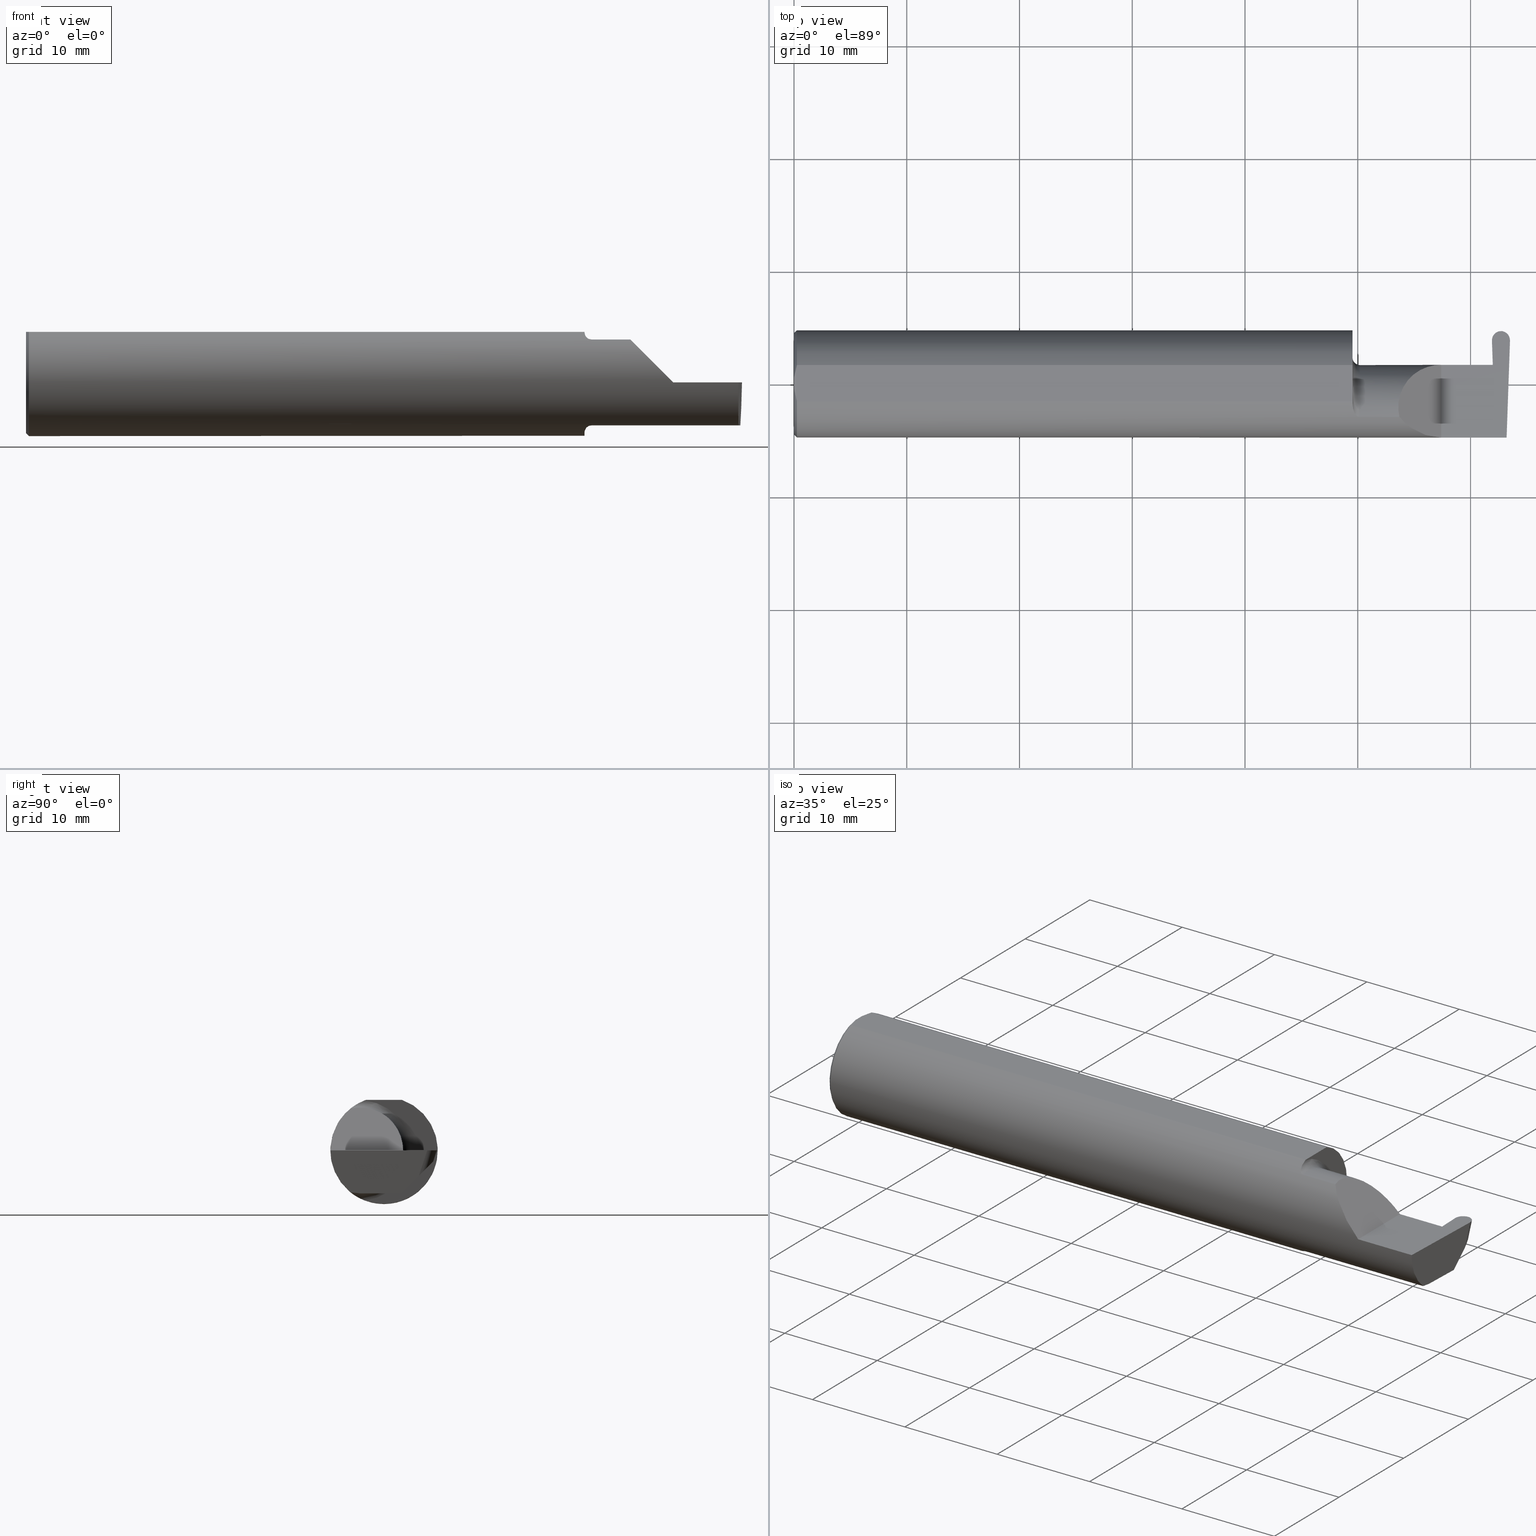
[diagram: canonical four-view strip — front | top / right | iso, engineering-drawing reading convention]
A machine part, canonical four-view strip (front | top / right | iso — engineering-drawing reading convention). The complete STEP part file that produces these views, byte-faithful:
ISO-10303-21;
HEADER;
FILE_DESCRIPTION (( 'STEP AP203' ),
    '1' );
FILE_NAME ('222158-GFR062-8.STEP',
    '2024-06-26T19:11:12',
    ( '' ),
    ( '' ),
    'SwSTEP 2.0',
    'SolidWorks 2024',
    '' );
FILE_SCHEMA (( 'CONFIG_CONTROL_DESIGN' ));
ENDSEC;

DATA;
#1 = ORIENTED_EDGE ( 'NONE', *, *, #479, .T. ) ;
#2 = EDGE_CURVE ( 'NONE', #534, #706, #395, .T. ) ;
#3 = CARTESIAN_POINT ( 'NONE',  ( 2.489143054109411057, -0.08335000000000006293, -0.1500000000000000500 ) ) ;
#4 = ORIENTED_EDGE ( 'NONE', *, *, #583, .T. ) ;
#5 = VECTOR ( 'NONE', #15, 39.37007874015748143 ) ;
#6 = AXIS2_PLACEMENT_3D ( 'NONE', #154, #57, #103 ) ;
#7 = LINE ( 'NONE', #334, #238 ) ;
#8 = ORIENTED_EDGE ( 'NONE', *, *, #583, .F. ) ;
#9 = APPROVAL_DATE_TIME ( #654, #417 ) ;
#10 = VERTEX_POINT ( 'NONE', #521 ) ;
#11 = DIRECTION ( 'NONE',  ( -1.000000000000000000, 0.000000000000000000, 1.224646799147353947E-16 ) ) ;
#12 = COORDINATED_UNIVERSAL_TIME_OFFSET ( 8, 0, .BEHIND. ) ;
#13 = EDGE_CURVE ( 'NONE', #59, #550, #329, .T. ) ;
#14 = VERTEX_POINT ( 'NONE', #621 ) ;
#15 = DIRECTION ( 'NONE',  ( -0.03701744261649735079, -0.7066221440565398915, -0.7066221440565479961 ) ) ;
#16 = CIRCLE ( 'NONE', #401, 0.1873499999999999888 ) ;
#17 = DIRECTION ( 'NONE',  ( -1.000000000000000000, -0.000000000000000000, -0.000000000000000000 ) ) ;
#18 = ORIENTED_EDGE ( 'NONE', *, *, #317, .F. ) ;
#19 = CARTESIAN_POINT ( 'NONE',  ( 0.000000000000000000, 0.000000000000000000, 0.000000000000000000 ) ) ;
#20 = ORIENTED_EDGE ( 'NONE', *, *, #520, .T. ) ;
#21 = CARTESIAN_POINT ( 'NONE',  ( 0.000000000000000000, 0.000000000000000000, 0.000000000000000000 ) ) ;
#22 = EDGE_CURVE ( 'NONE', #501, #406, #175, .T. ) ;
#23 = DATE_AND_TIME ( #359, #136 ) ;
#24 = CARTESIAN_POINT ( 'NONE',  ( 0.000000000000000000, -0.01880691362239451242, 0.1763499999999999235 ) ) ;
#25 = CARTESIAN_POINT ( 'NONE',  ( 2.449969426344554169, 0.1715521506114305039, -0.03875090093171906780 ) ) ;
#26 = EDGE_CURVE ( 'NONE', #706, #680, #342, .T. ) ;
#27 = APPROVAL_PERSON_ORGANIZATION ( #491, #271, #282 ) ;
#28 = ORIENTED_EDGE ( 'NONE', *, *, #264, .T. ) ;
#29 = CARTESIAN_POINT ( 'NONE',  ( 2.488744025780163405, -0.09477667630339421667, -0.1500000000000000222 ) ) ;
#30 = LINE ( 'NONE', #535, #275 ) ;
#31 = PERSON_AND_ORGANIZATION ( #367, #331 ) ;
#32 = CARTESIAN_POINT ( 'NONE',  ( 2.468430450000000054, 0.1722870660481372052, -0.03801598549501233881 ) ) ;
#33 = CARTESIAN_POINT ( 'NONE',  ( 2.437968007029192030, 0.1506577441815558360, -0.05964530736159395080 ) ) ;
#34 = CARTESIAN_POINT ( 'NONE',  ( 1.949999999999999956, -0.08335000000000000742, 0.000000000000000000 ) ) ;
#35 = CARTESIAN_POINT ( 'NONE',  ( 2.466868444985754305, 0.1637525499561582054, -0.06431573796887415928 ) ) ;
#36 = EDGE_CURVE ( 'NONE', #644, #641, #548, .T. ) ;
#37 = LINE ( 'NONE', #413, #609 ) ;
#38 = CARTESIAN_POINT ( 'NONE',  ( 2.449270737010766030, 0.1846499999999998975, 6.213428064161130250E-18 ) ) ;
#39 = CLOSED_SHELL ( 'NONE', ( #602, #346, #283, #605, #337, #121, #551, #431, #639, #273, #186, #196, #47, #690, #212, #362, #649, #132, #239 ) ) ;
#40 = CARTESIAN_POINT ( 'NONE',  ( 2.468430450000000054, 0.1722870660481372052, -0.03801598549501233881 ) ) ;
#41 = LINE ( 'NONE', #593, #493 ) ;
#42 = ORIENTED_EDGE ( 'NONE', *, *, #13, .F. ) ;
#43 = DIRECTION ( 'NONE',  ( 1.000000000000000000, 0.000000000000000000, -0.000000000000000000 ) ) ;
#44 = CARTESIAN_POINT ( 'NONE',  ( 0.000000000000000000, 0.06325108694718235836, 0.1763499999999999235 ) ) ;
#45 = ORIENTED_EDGE ( 'NONE', *, *, #699, .T. ) ;
#46 = PLANE ( 'NONE',  #502 ) ;
#47 = ADVANCED_FACE ( 'NONE', ( #455 ), #350, .F. ) ;
#48 = CARTESIAN_POINT ( 'NONE',  ( 1.951829077486400221, -0.08839624499054647699, 0.1652742498708037466 ) ) ;
#49 = DIRECTION ( 'NONE',  ( 0.7071067811865426878, 0.000000000000000000, -0.7071067811865523467 ) ) ;
#50 = EDGE_LOOP ( 'NONE', ( #45, #20, #446, #477, #230, #374 ) ) ;
#51 = CARTESIAN_POINT ( 'NONE',  ( 2.439859874782298377, 0.06664999999999998703, 0.000000000000000000 ) ) ;
#52 = CARTESIAN_POINT ( 'NONE',  ( 1.974999999999999867, -0.1172600179964006784, 0.1461167706989303650 ) ) ;
#53 = PLANE ( 'NONE',  #287 ) ;
#54 = VECTOR ( 'NONE', #686, 39.37007874015748143 ) ;
#55 = VERTEX_POINT ( 'NONE', #128 ) ;
#56 = SECURITY_CLASSIFICATION ( '', '', #233 ) ;
#57 = DIRECTION ( 'NONE',  ( -1.000000000000000000, -0.000000000000000000, -0.000000000000000000 ) ) ;
#58 = FACE_OUTER_BOUND ( 'NONE', #153, .T. ) ;
#59 = VERTEX_POINT ( 'NONE', #78 ) ;
#60 = ORIENTED_EDGE ( 'NONE', *, *, #391, .T. ) ;
#61 = DATE_TIME_ROLE ( 'creation_date' ) ;
#62 = ORIENTED_EDGE ( 'NONE', *, *, #391, .F. ) ;
#63 = AXIS2_PLACEMENT_3D ( 'NONE', #678, #142, #642 ) ;
#64 =( LENGTH_UNIT ( ) NAMED_UNIT ( * ) SI_UNIT ( $, .METRE. ) );
#65 = ORIENTED_EDGE ( 'NONE', *, *, #2, .T. ) ;
#66 = DIRECTION ( 'NONE',  ( -0.01806954526206907760, 0.01744955702544846027, 0.9996844524616944616 ) ) ;
#67 = ORIENTED_EDGE ( 'NONE', *, *, #635, .F. ) ;
#68 = DIRECTION ( 'NONE',  ( -1.000000000000000000, -0.000000000000000000, -0.000000000000000000 ) ) ;
#69 = PERSON_AND_ORGANIZATION ( #367, #331 ) ;
#70 = EDGE_LOOP ( 'NONE', ( #204, #267, #380, #92, #669, #473, #449, #652, #194 ) ) ;
#71 = CARTESIAN_POINT ( 'NONE',  ( 2.500000000000000000, -0.2500000000000000555, 0.000000000000000000 ) ) ;
#72 = AXIS2_PLACEMENT_3D ( 'NONE', #321, #340, #667 ) ;
#73 = ORIENTED_EDGE ( 'NONE', *, *, #572, .T. ) ;
#74 = EDGE_CURVE ( 'NONE', #644, #685, #574, .T. ) ;
#75 = CARTESIAN_POINT ( 'NONE',  ( 2.439475726232483321, 0.1218770478189729611, -0.08842600372417716570 ) ) ;
#76 = CARTESIAN_POINT ( 'NONE',  ( -0.001039370078740541395, 0.06030305154315079158, -0.1500000000000000500 ) ) ;
#77 = CARTESIAN_POINT ( 'NONE',  ( 2.499944547461123268, 0.1507395558974708727, 0.0004036622306032532342 ) ) ;
#78 = CARTESIAN_POINT ( 'NONE',  ( 2.499932917084233264, 0.1506083980881225692, 0.000000000000000000 ) ) ;
#79 = PLANE ( 'NONE',  #687 ) ;
#80 =( BOUNDED_CURVE ( )  B_SPLINE_CURVE ( 3, ( #396, #615, #507, #595 ),
 .UNSPECIFIED., .F., .F. ) 
 B_SPLINE_CURVE_WITH_KNOTS ( ( 4, 4 ),
 ( 6.055147272130144920, 7.853981633974482790 ),
 .UNSPECIFIED. ) 
 CURVE ( )  GEOMETRIC_REPRESENTATION_ITEM ( )  RATIONAL_B_SPLINE_CURVE ( ( 1.000000000000000000, 0.7480442670255273985, 0.7480442670255273985, 1.000000000000000000 ) ) 
 REPRESENTATION_ITEM ( '' )  );
#81 = VECTOR ( 'NONE', #255, 39.37007874015748143 ) ;
#82 = APPROVAL_PERSON_ORGANIZATION ( #182, #487, #462 ) ;
#83 = CC_DESIGN_PERSON_AND_ORGANIZATION_ASSIGNMENT ( #172, #327, ( #508 ) ) ;
#84 = CARTESIAN_POINT ( 'NONE',  ( 2.500625205974851273, 0.1704329581048291409, -1.247844596711687595E-17 ) ) ;
#85 = CARTESIAN_POINT ( 'NONE',  ( 2.202189699843948301, -0.1873500000000000443, 0.05781030015605120170 ) ) ;
#86 = DIRECTION ( 'NONE',  ( 0.000000000000000000, 0.9510565162951533091, -0.3090169943749480619 ) ) ;
#87 = EDGE_CURVE ( 'NONE', #550, #587, #480, .T. ) ;
#88 = ORIENTED_EDGE ( 'NONE', *, *, #668, .F. ) ;
#89 = CARTESIAN_POINT ( 'NONE',  ( 1.951843912362378308, -0.08846956905169088559, -0.1652353808078972919 ) ) ;
#90 = DIRECTION ( 'NONE',  ( -1.000000000000000000, -3.506966766154694863E-17, -0.000000000000000000 ) ) ;
#91 = FACE_OUTER_BOUND ( 'NONE', #594, .T. ) ;
#92 = ORIENTED_EDGE ( 'NONE', *, *, #143, .F. ) ;
#93 = CARTESIAN_POINT ( 'NONE',  ( 1.949999999999999956, 0.1873499999999999055, 0.000000000000000000 ) ) ;
#94 = LINE ( 'NONE', #259, #469 ) ;
#95 = EDGE_CURVE ( 'NONE', #587, #501, #448, .T. ) ;
#96 = VERTEX_POINT ( 'NONE', #536 ) ;
#97 = CARTESIAN_POINT ( 'NONE',  ( 2.488131149766799943, -0.1873499999999999888, 0.000000000000000000 ) ) ;
#98 = CARTESIAN_POINT ( 'NONE',  ( 1.949999999999999956, 0.06325108694718235836, 0.1763499999999999235 ) ) ;
#99 = CARTESIAN_POINT ( 'NONE',  ( 2.468392368909974710, 0.1518387226096841736, 0.0009534130333776854498 ) ) ;
#100 = CARTESIAN_POINT ( 'NONE',  ( 0.000000000000000000, -0.01880691362239451242, 0.1763499999999999235 ) ) ;
#101 = ORIENTED_EDGE ( 'NONE', *, *, #657, .T. ) ;
#102 = B_SPLINE_CURVE_WITH_KNOTS ( 'NONE', 3,
 ( #308, #151, #202, #48, #683, #344, #567, #254, #704, #397, #171, #454 ),
 .UNSPECIFIED., .F., .F.,
 ( 4, 2, 2, 2, 2, 4 ),
 ( 4.423516731080767705E-05, 0.0004615475116586702166, 0.0008788598560065327562, 0.001296172200354395350, 0.001504828372528326267, 0.001713484544702257402 ),
 .UNSPECIFIED. ) ;
#103 = DIRECTION ( 'NONE',  ( 0.000000000000000000, 0.000000000000000000, -1.000000000000000000 ) ) ;
#104 = DIRECTION ( 'NONE',  ( -0.02739170151059995562, 0.3089010440752013587, 0.9506996579664918068 ) ) ;
#105 = VECTOR ( 'NONE', #471, 39.37007874015748854 ) ;
#106 = VECTOR ( 'NONE', #174, 39.37007874015748143 ) ;
#107 = ORIENTED_EDGE ( 'NONE', *, *, #292, .T. ) ;
#108 = EDGE_CURVE ( 'NONE', #534, #441, #688, .T. ) ;
#109 = ORIENTED_EDGE ( 'NONE', *, *, #219, .T. ) ;
#110 = DATE_AND_TIME ( #118, #265 ) ;
#111 = VERTEX_POINT ( 'NONE', #197 ) ;
#112 = FACE_OUTER_BOUND ( 'NONE', #50, .T. ) ;
#113 = VERTEX_POINT ( 'NONE', #52 ) ;
#114 = EDGE_CURVE ( 'NONE', #650, #113, #102, .T. ) ;
#115 = VECTOR ( 'NONE', #404, 39.37007874015748143 ) ;
#116 = PLANE ( 'NONE',  #575 ) ;
#117 = ORIENTED_EDGE ( 'NONE', *, *, #596, .T. ) ;
#118 = CALENDAR_DATE ( 2024, 26, 6 ) ;
#119 = VERTEX_POINT ( 'NONE', #573 ) ;
#120 = CARTESIAN_POINT ( 'NONE',  ( 2.499980768683121024, 0.1519786885938757826, 0.000000000000000000 ) ) ;
#121 = ADVANCED_FACE ( 'NONE', ( #181 ), #296, .T. ) ;
#122 = EDGE_LOOP ( 'NONE', ( #215, #328, #492, #141, #364, #383, #278, #659, #560, #368, #335, #354, #600 ) ) ;
#123 = DIRECTION ( 'NONE',  ( 0.02739170151059983765, 0.3089010440752013031, 0.9506996579664920288 ) ) ;
#124 = DIRECTION ( 'NONE',  ( -0.03489949670249307273, -0.9993908270190959842, 0.000000000000000000 ) ) ;
#125 = LINE ( 'NONE', #138, #115 ) ;
#126 = DESIGN_CONTEXT ( 'detailed design', #434, 'design' ) ;
#127 = DATE_TIME_ROLE ( 'classification_date' ) ;
#128 = CARTESIAN_POINT ( 'NONE',  ( 1.949999999999999956, -0.06851976604679065053, -0.1743704796142198643 ) ) ;
#129 = CARTESIAN_POINT ( 'NONE',  ( 2.488131149766799943, -0.1873499999999999888, 0.000000000000000000 ) ) ;
#130 = CARTESIAN_POINT ( 'NONE',  ( 2.499932917084233264, 0.1506083980881225692, 0.000000000000000000 ) ) ;
#131 = DIRECTION ( 'NONE',  ( 0.000000000000000000, 0.000000000000000000, -1.000000000000000000 ) ) ;
#132 = ADVANCED_FACE ( 'NONE', ( #478 ), #519, .T. ) ;
#133 = DIRECTION ( 'NONE',  ( 0.9992386149554828290, 0.03489418134010615485, 0.01745240643728358798 ) ) ;
#134 = VECTOR ( 'NONE', #124, 39.37007874015748854 ) ;
#135 = VECTOR ( 'NONE', #49, 39.37007874015748143 ) ;
#136 = LOCAL_TIME ( 12, 11, 12.00000000000000000, #684 ) ;
#137 = VERTEX_POINT ( 'NONE', #299 ) ;
#138 = CARTESIAN_POINT ( 'NONE',  ( 2.733184360054361939, -0.08335000000000006293, -0.1500000000000000500 ) ) ;
#139 = CARTESIAN_POINT ( 'NONE',  ( 2.430678306684182832, 0.06658908270190941336, -0.003489949670254420978 ) ) ;
#140 = DIRECTION ( 'NONE',  ( 3.506966766154694863E-17, -1.000000000000000000, 0.000000000000000000 ) ) ;
#141 = ORIENTED_EDGE ( 'NONE', *, *, #451, .T. ) ;
#142 = DIRECTION ( 'NONE',  ( 0.000000000000000000, 0.000000000000000000, 1.000000000000000000 ) ) ;
#143 = EDGE_CURVE ( 'NONE', #14, #332, #244, .T. ) ;
#144 = CARTESIAN_POINT ( 'NONE',  ( 1.949999999999999956, -0.06851976604679065053, 0.1743704796142198643 ) ) ;
#145 = ORIENTED_EDGE ( 'NONE', *, *, #596, .F. ) ;
#146 = DIRECTION ( 'NONE',  ( 1.000000000000000000, 0.000000000000000000, 0.000000000000000000 ) ) ;
#147 = VECTOR ( 'NONE', #17, 39.37007874015748143 ) ;
#148 = CARTESIAN_POINT ( 'NONE',  ( 2.468430450000000054, 0.1813675557112593428, -0.01010232474915218753 ) ) ;
#149 = EDGE_LOOP ( 'NONE', ( #486, #389, #505, #606 ) ) ;
#150 = CARTESIAN_POINT ( 'NONE',  ( 2.468139380300150343, 0.1846500000000000363, 0.000000000000000000 ) ) ;
#151 = CARTESIAN_POINT ( 'NONE',  ( 1.949999999999999956, -0.07367581953296703512, 0.1723443821957854338 ) ) ;
#152 = CARTESIAN_POINT ( 'NONE',  ( 0.000000000000000000, 0.000000000000000000, -0.1773500000000005072 ) ) ;
#153 = EDGE_LOOP ( 'NONE', ( #570, #73, #345, #482 ) ) ;
#154 = CARTESIAN_POINT ( 'NONE',  ( 0.000000000000000000, 0.000000000000000000, 0.000000000000000000 ) ) ;
#155 = PRODUCT_RELATED_PRODUCT_CATEGORY ( 'detail', '', ( #545 ) ) ;
#156 = LINE ( 'NONE', #537, #608 ) ;
#157 = ORIENTED_EDGE ( 'NONE', *, *, #617, .T. ) ;
#158 = EDGE_CURVE ( 'NONE', #540, #240, #225, .T. ) ;
#159 = AXIS2_PLACEMENT_3D ( 'NONE', #592, #146, #190 ) ;
#160 = ORIENTED_EDGE ( 'NONE', *, *, #371, .F. ) ;
#161 = CARTESIAN_POINT ( 'NONE',  ( 0.000000000000000000, 0.000000000000000000, 0.000000000000000000 ) ) ;
#162 = ORIENTED_EDGE ( 'NONE', *, *, #490, .F. ) ;
#163 = DATE_AND_TIME ( #549, #388 ) ;
#164 = EDGE_CURVE ( 'NONE', #332, #240, #30, .T. ) ;
#165 = ORIENTED_EDGE ( 'NONE', *, *, #520, .F. ) ;
#166 = DIRECTION ( 'NONE',  ( -0.03489949670249308661, -0.9993908270190960952, 0.000000000000000000 ) ) ;
#167 =( CONVERSION_BASED_UNIT ( 'INCH', #435 ) LENGTH_UNIT ( ) NAMED_UNIT ( #589 ) );
#168 = ORIENTED_EDGE ( 'NONE', *, *, #95, .F. ) ;
#169 = CARTESIAN_POINT ( 'NONE',  ( 0.000000000000000000, 0.000000000000000000, 0.000000000000000000 ) ) ;
#170 = APPROVAL_PERSON_ORGANIZATION ( #69, #417, #274 ) ;
#171 = CARTESIAN_POINT ( 'NONE',  ( 1.972161949849307927, -0.1172600179964061184, 0.1461167706989260073 ) ) ;
#172 = PERSON_AND_ORGANIZATION ( #367, #331 ) ;
#173 = ORIENTED_EDGE ( 'NONE', *, *, #418, .F. ) ;
#174 = DIRECTION ( 'NONE',  ( -0.0003154085283454578109, 0.9999999502587288980, 0.000000000000000000 ) ) ;
#175 =( BOUNDED_CURVE ( )  B_SPLINE_CURVE ( 3, ( #32, #290, #183, #618 ),
 .UNSPECIFIED., .F., .T. ) 
 B_SPLINE_CURVE_WITH_KNOTS ( ( 4, 4 ),
 ( 3.153164711223715777, 4.726229945297541590 ),
 .UNSPECIFIED. ) 
 CURVE ( )  GEOMETRIC_REPRESENTATION_ITEM ( )  RATIONAL_B_SPLINE_CURVE ( ( 1.000000000000000000, 0.8042027643195487352, 0.8042027643195487352, 1.000000000000000000 ) ) 
 REPRESENTATION_ITEM ( '' )  );
#176 = VERTEX_POINT ( 'NONE', #97 ) ;
#177 = LINE ( 'NONE', #120, #552 ) ;
#178 = DIRECTION ( 'NONE',  ( 1.000000000000000000, -0.000000000000000000, -0.000000000000000000 ) ) ;
#179 = VECTOR ( 'NONE', #192, 39.37007874015748143 ) ;
#180 = CIRCLE ( 'NONE', #250, 0.1873499999999999888 ) ;
#181 = FACE_OUTER_BOUND ( 'NONE', #304, .T. ) ;
#182 = PERSON_AND_ORGANIZATION ( #367, #331 ) ;
#183 = CARTESIAN_POINT ( 'NONE',  ( 2.498892892970808521, 0.1506577441815563079, -0.05964530736159349283 ) ) ;
#184 = CARTESIAN_POINT ( 'NONE',  ( 2.487084196965268390, -0.1623470442677540926, -0.1099340280425339100 ) ) ;
#185 = ORIENTED_EDGE ( 'NONE', *, *, #475, .T. ) ;
#186 = ADVANCED_FACE ( 'NONE', ( #305 ), #461, .T. ) ;
#187 = CARTESIAN_POINT ( 'NONE',  ( 2.487121452143546296, -0.1873500000000000165, -0.05781030015605123640 ) ) ;
#188 = DIRECTION ( 'NONE',  ( 0.000000000000000000, -1.000000000000000000, 0.000000000000000000 ) ) ;
#189 = CARTESIAN_POINT ( 'NONE',  ( 0.009999999999999346217, -0.06325108694718235836, 0.1763499999999999235 ) ) ;
#190 = DIRECTION ( 'NONE',  ( 0.000000000000000000, 0.000000000000000000, -1.000000000000000000 ) ) ;
#191 = AXIS2_PLACEMENT_3D ( 'NONE', #19, #231, #426 ) ;
#192 = DIRECTION ( 'NONE',  ( -0.01299916717458447432, 0.7070470357949164564, 0.7070470357949245610 ) ) ;
#193 = CARTESIAN_POINT ( 'NONE',  ( 2.489143054109411057, -0.08335000000000006293, -0.1500000000000000500 ) ) ;
#194 = ORIENTED_EDGE ( 'NONE', *, *, #13, .T. ) ;
#195 = DIRECTION ( 'NONE',  ( -1.000000000000000000, -3.506966766154694863E-17, -0.000000000000000000 ) ) ;
#196 = ADVANCED_FACE ( 'NONE', ( #200 ), #46, .F. ) ;
#197 = CARTESIAN_POINT ( 'NONE',  ( 2.439954497345508511, 0.06655862405284596051, -0.005234924505382013322 ) ) ;
#198 = DIRECTION ( 'NONE',  ( -0.7071067811865441310, 0.000000000000000000, -0.7071067811865510144 ) ) ;
#199 = ORIENTED_EDGE ( 'NONE', *, *, #564, .T. ) ;
#200 = FACE_OUTER_BOUND ( 'NONE', #576, .T. ) ;
#201 = B_SPLINE_CURVE_WITH_KNOTS ( 'NONE', 3,
 ( #696, #203, #419, #314 ),
 .UNSPECIFIED., .F., .F.,
 ( 4, 4 ),
 ( 0.01188664626022267051, 0.01304646959483758001 ),
 .UNSPECIFIED. ) ;
#202 = CARTESIAN_POINT ( 'NONE',  ( 1.950353553376444671, -0.07868116735658675642, 0.1701139256562800295 ) ) ;
#203 = CARTESIAN_POINT ( 'NONE',  ( 0.001616639753276218755, 0.03405189565400963680, 0.1763499999999999235 ) ) ;
#204 = ORIENTED_EDGE ( 'NONE', *, *, #496, .F. ) ;
#205 = CIRCLE ( 'NONE', #468, 0.1500000000000000500 ) ;
#206 = VECTOR ( 'NONE', #123, 39.37007874015747433 ) ;
#207 = LINE ( 'NONE', #539, #147 ) ;
#208 =( BOUNDED_CURVE ( )  B_SPLINE_CURVE ( 3, ( #343, #522, #29, #193 ),
 .UNSPECIFIED., .F., .F. ) 
 B_SPLINE_CURVE_WITH_KNOTS ( ( 4, 4 ),
 ( 0.8789888184544045746, 1.107026853503847663 ),
 .UNSPECIFIED. ) 
 CURVE ( )  GEOMETRIC_REPRESENTATION_ITEM ( )  RATIONAL_B_SPLINE_CURVE ( ( 1.000000000000000000, 0.9956712472009929815, 0.9956712472009929815, 1.000000000000000000 ) ) 
 REPRESENTATION_ITEM ( '' )  );
#209 = ORIENTED_EDGE ( 'NONE', *, *, #506, .T. ) ;
#210 = CARTESIAN_POINT ( 'NONE',  ( 2.430647848035137226, 0.06655862405286416816, -0.005234924505381627347 ) ) ;
#211 = LINE ( 'NONE', #251, #531 ) ;
#212 = ADVANCED_FACE ( 'NONE', ( #523 ), #311, .F. ) ;
#213 = ORIENTED_EDGE ( 'NONE', *, *, #412, .T. ) ;
#214 = LINE ( 'NONE', #428, #518 ) ;
#215 = ORIENTED_EDGE ( 'NONE', *, *, #564, .F. ) ;
#216 = CC_DESIGN_PERSON_AND_ORGANIZATION_ASSIGNMENT ( #222, #439, ( #357 ) ) ;
#217 = AXIS2_PLACEMENT_3D ( 'NONE', #319, #700, #140 ) ;
#218 = EDGE_LOOP ( 'NONE', ( #315, #117, #425 ) ) ;
#219 = EDGE_CURVE ( 'NONE', #113, #137, #205, .T. ) ;
#220 = CARTESIAN_POINT ( 'NONE',  ( 2.494159529209134529, 0.06030305154315079852, -0.1500000000000000500 ) ) ;
#221 = ORIENTED_EDGE ( 'NONE', *, *, #451, .F. ) ;
#222 = PERSON_AND_ORGANIZATION ( #367, #331 ) ;
#223 = EDGE_LOOP ( 'NONE', ( #547, #614, #168, #376, #42 ) ) ;
#224 = DIRECTION ( 'NONE',  ( 1.000000000000000000, 3.506966766154694863E-17, 0.000000000000000000 ) ) ;
#225 =( BOUNDED_CURVE ( )  B_SPLINE_CURVE ( 3, ( #150, #38, #527, #694 ),
 .UNSPECIFIED., .F., .F. ) 
 B_SPLINE_CURVE_WITH_KNOTS ( ( 4, 4 ),
 ( 3.057488531086369754, 4.656081685705084183 ),
 .UNSPECIFIED. ) 
 CURVE ( )  GEOMETRIC_REPRESENTATION_ITEM ( )  RATIONAL_B_SPLINE_CURVE ( ( 1.000000000000000000, 0.7981407609938104830, 0.7981407609938104830, 1.000000000000000000 ) ) 
 REPRESENTATION_ITEM ( '' )  );
#226 = EDGE_LOOP ( 'NONE', ( #185, #173, #157, #28 ) ) ;
#227 = DIRECTION ( 'NONE',  ( -0.03489949670249307273, -0.9993908270190959842, 0.000000000000000000 ) ) ;
#228 = CIRCLE ( 'NONE', #6, 0.1773500000000005072 ) ;
#229 = COORDINATED_UNIVERSAL_TIME_OFFSET ( 8, 0, .BEHIND. ) ;
#230 = ORIENTED_EDGE ( 'NONE', *, *, #2, .F. ) ;
#231 = DIRECTION ( 'NONE',  ( -1.000000000000000000, -0.000000000000000000, -0.000000000000000000 ) ) ;
#232 = EDGE_CURVE ( 'NONE', #685, #119, #237, .T. ) ;
#233 = SECURITY_CLASSIFICATION_LEVEL ( 'unclassified' ) ;
#234 = DIRECTION ( 'NONE',  ( 0.000000000000000000, 0.000000000000000000, -1.000000000000000000 ) ) ;
#235 = DIRECTION ( 'NONE',  ( 0.000000000000000000, -0.9510565162951534202, 0.3090169943749482284 ) ) ;
#236 = CARTESIAN_POINT ( 'NONE',  ( 1.972174967710398796, -0.1172600179964006228, -0.1461167706989304205 ) ) ;
#237 = CIRCLE ( 'NONE', #159, 0.1873499999999999888 ) ;
#238 = VECTOR ( 'NONE', #546, 39.37007874015748143 ) ;
#239 = ADVANCED_FACE ( 'NONE', ( #698 ), #358, .T. ) ;
#240 = VERTEX_POINT ( 'NONE', #579 ) ;
#241 = CARTESIAN_POINT ( 'NONE',  ( 2.468430450000000054, 0.1722870660481372052, -0.03801598549501233881 ) ) ;
#242 = DIRECTION ( 'NONE',  ( -0.03489949670249346131, 0.9993908270190959842, -0.000000000000000000 ) ) ;
#243 = CALENDAR_DATE ( 2024, 26, 6 ) ;
#244 = LINE ( 'NONE', #474, #620 ) ;
#245 =( BOUNDED_CURVE ( )  B_SPLINE_CURVE ( 3, ( #75, #33, #25, #241 ),
 .UNSPECIFIED., .F., .F. ) 
 B_SPLINE_CURVE_WITH_KNOTS ( ( 4, 4 ),
 ( 1.556955361882043087, 3.130020595955853135 ),
 .UNSPECIFIED. ) 
 CURVE ( )  GEOMETRIC_REPRESENTATION_ITEM ( )  RATIONAL_B_SPLINE_CURVE ( ( 1.000000000000000000, 0.8042027643195523989, 0.8042027643195523989, 1.000000000000000000 ) ) 
 REPRESENTATION_ITEM ( '' )  );
#246 = LINE ( 'NONE', #513, #54 ) ;
#247 = EDGE_CURVE ( 'NONE', #392, #14, #348, .T. ) ;
#248 = FACE_OUTER_BOUND ( 'NONE', #436, .T. ) ;
#249 = AXIS2_PLACEMENT_3D ( 'NONE', #99, #408, #629 ) ;
#250 = AXIS2_PLACEMENT_3D ( 'NONE', #269, #590, #533 ) ;
#251 = CARTESIAN_POINT ( 'NONE',  ( 2.439859874782298377, 0.06664999999999998703, -9.645561665750239894E-21 ) ) ;
#252 = ORIENTED_EDGE ( 'NONE', *, *, #26, .F. ) ;
#253 = CARTESIAN_POINT ( 'NONE',  ( 1.974999999999999867, -0.08335000000000000742, 0.000000000000000000 ) ) ;
#254 = CARTESIAN_POINT ( 'NONE',  ( 1.963163223656403389, -0.1119926267047277602, 0.1502091925606062750 ) ) ;
#255 = DIRECTION ( 'NONE',  ( -1.000000000000000000, -0.000000000000000000, -0.000000000000000000 ) ) ;
#256 = ORIENTED_EDGE ( 'NONE', *, *, #232, .F. ) ;
#257 = CARTESIAN_POINT ( 'NONE',  ( 2.733184360054361939, -0.08335000000000006293, -0.1500000000000000500 ) ) ;
#258 = CARTESIAN_POINT ( 'NONE',  ( 2.468430450000000054, 0.1783435689548762415, -0.01940919900590836605 ) ) ;
#259 = CARTESIAN_POINT ( 'NONE',  ( 0.000000000000000000, 0.1873499999999998500, 0.1763499999999999235 ) ) ;
#260 = EDGE_LOOP ( 'NONE', ( #4, #509, #213 ) ) ;
#261 = DIRECTION ( 'NONE',  ( -1.224646799147353947E-16, 0.000000000000000000, -1.000000000000000000 ) ) ;
#262 = VECTOR ( 'NONE', #224, 39.37007874015748143 ) ;
#263 = AXIS2_PLACEMENT_3D ( 'NONE', #21, #291, #234 ) ;
#264 = EDGE_CURVE ( 'NONE', #650, #55, #562, .T. ) ;
#265 = LOCAL_TIME ( 12, 11, 12.00000000000000000, #12 ) ;
#266 = DIRECTION ( 'NONE',  ( 1.000000000000000000, 0.000000000000000000, 0.000000000000000000 ) ) ;
#267 = ORIENTED_EDGE ( 'NONE', *, *, #158, .T. ) ;
#268 = CARTESIAN_POINT ( 'NONE',  ( 0.000000000000000000, 0.000000000000000000, -0.1773500000000005072 ) ) ;
#269 = CARTESIAN_POINT ( 'NONE',  ( 1.949999999999999956, 0.000000000000000000, 0.000000000000000000 ) ) ;
#270 = ORIENTED_EDGE ( 'NONE', *, *, #247, .F. ) ;
#271 = APPROVAL ( #382, 'UNSPECIFIED' ) ;
#272 = ORIENTED_EDGE ( 'NONE', *, *, #572, .F. ) ;
#273 = ADVANCED_FACE ( 'NONE', ( #248 ), #470, .T. ) ;
#274 = APPROVAL_ROLE ( '' ) ;
#275 = VECTOR ( 'NONE', #242, 39.37007874015748143 ) ;
#276 = ORIENTED_EDGE ( 'NONE', *, *, #635, .T. ) ;
#277 = APPROVAL_STATUS ( 'not_yet_approved' ) ;
#278 = ORIENTED_EDGE ( 'NONE', *, *, #617, .F. ) ;
#279 = CARTESIAN_POINT ( 'NONE',  ( 2.442617647571764028, -0.08334999999999999354, -0.1500000000000000500 ) ) ;
#280 = ORIENTED_EDGE ( 'NONE', *, *, #490, .T. ) ;
#281 = CARTESIAN_POINT ( 'NONE',  ( 2.499980768683121024, 0.1519786885938757826, 0.000000000000000000 ) ) ;
#282 = APPROVAL_ROLE ( '' ) ;
#283 = ADVANCED_FACE ( 'NONE', ( #638 ), #557, .T. ) ;
#284 = AXIS2_PLACEMENT_3D ( 'NONE', #532, #133, #372 ) ;
#285 = ORIENTED_EDGE ( 'NONE', *, *, #377, .T. ) ;
#286 = CARTESIAN_POINT ( 'NONE',  ( 2.439954497345508511, 0.06655862405284596051, -0.005234924505382013322 ) ) ;
#287 = AXIS2_PLACEMENT_3D ( 'NONE', #481, #198, #370 ) ;
#288 = ORIENTED_EDGE ( 'NONE', *, *, #529, .T. ) ;
#289 = CARTESIAN_POINT ( 'NONE',  ( 2.468430450000000054, 0.1722870660481372052, -0.03801598549501233881 ) ) ;
#290 = CARTESIAN_POINT ( 'NONE',  ( 2.486891473655445939, 0.1715521506114309758, -0.03875090093171855432 ) ) ;
#291 = DIRECTION ( 'NONE',  ( 1.000000000000000000, 0.000000000000000000, 0.000000000000000000 ) ) ;
#292 = EDGE_CURVE ( 'NONE', #10, #14, #538, .T. ) ;
#293 = VERTEX_POINT ( 'NONE', #488 ) ;
#294 = DIRECTION ( 'NONE',  ( 1.000000000000000000, 3.506966766154694863E-17, 0.000000000000000000 ) ) ;
#295 = VECTOR ( 'NONE', #347, 39.37007874015748143 ) ;
#296 = PLANE ( 'NONE',  #63 ) ;
#297 = CARTESIAN_POINT ( 'NONE',  ( 2.468721519699850209, 0.1846500000000000363, 0.000000000000000000 ) ) ;
#298 = LINE ( 'NONE', #453, #295 ) ;
#299 = CARTESIAN_POINT ( 'NONE',  ( 1.974999999999999867, -0.1172600179964005396, -0.1461167706989303927 ) ) ;
#300 = CARTESIAN_POINT ( 'NONE',  ( 1.949999999999999956, -0.06851976604679065053, -0.1743704796142198643 ) ) ;
#301 = DIRECTION ( 'NONE',  ( 0.000000000000000000, -1.000000000000000000, 0.000000000000000000 ) ) ;
#302 = CARTESIAN_POINT ( 'NONE',  ( 2.440100631637626805, 0.1947434164498489384, -0.01555963509330035924 ) ) ;
#303 = LINE ( 'NONE', #309, #656 ) ;
#304 = EDGE_LOOP ( 'NONE', ( #285, #452, #101, #88, #8, #381 ) ) ;
#305 = FACE_OUTER_BOUND ( 'NONE', #226, .T. ) ;
#306 = AXIS2_PLACEMENT_3D ( 'NONE', #691, #195, #415 ) ;
#307 = AXIS2_PLACEMENT_3D ( 'NONE', #71, #261, #11 ) ;
#308 = CARTESIAN_POINT ( 'NONE',  ( 1.949999999999999956, -0.06851976604679065053, 0.1743704796142198643 ) ) ;
#309 = CARTESIAN_POINT ( 'NONE',  ( 2.466286742368338114, 0.2055425243730719109, 0.06430057831303589988 ) ) ;
#310 = ORIENTED_EDGE ( 'NONE', *, *, #114, .T. ) ;
#311 = PLANE ( 'NONE',  #284 ) ;
#312 = B_SPLINE_CURVE_WITH_KNOTS ( 'NONE', 3,
 ( #626, #236, #517, #456, #581, #411, #677, #510, #89, #460, #681, #300 ),
 .UNSPECIFIED., .F., .F.,
 ( 4, 2, 2, 2, 2, 4 ),
 ( 1.967976973726874814E-07, 0.0002120314145722347263, 0.0004238660314470967276, 0.0008475352651968083703, 0.001271204498946519905, 0.001694873732696231547 ),
 .UNSPECIFIED. ) ;
#313 = CARTESIAN_POINT ( 'NONE',  ( 2.468430450000000054, 0.1813675557112593428, -0.01010232474915218753 ) ) ;
#314 = CARTESIAN_POINT ( 'NONE',  ( 0.009999999999999346217, 0.06325108694718235836, 0.1763499999999999235 ) ) ;
#315 = ORIENTED_EDGE ( 'NONE', *, *, #87, .T. ) ;
#316 = LINE ( 'NONE', #442, #106 ) ;
#317 = EDGE_CURVE ( 'NONE', #406, #706, #664, .T. ) ;
#318 = CARTESIAN_POINT ( 'NONE',  ( 2.468430450000000054, 0.1753165746847618889, -0.02871425790364446132 ) ) ;
#319 = CARTESIAN_POINT ( 'NONE',  ( 1.974999999999999867, -0.08334999999999999354, 0.000000000000000000 ) ) ;
#320 = EDGE_LOOP ( 'NONE', ( #580, #145, #430, #165, #410 ) ) ;
#321 = CARTESIAN_POINT ( 'NONE',  ( 2.439859874782298377, 0.06664999999999998703, 0.000000000000000000 ) ) ;
#322 = VECTOR ( 'NONE', #670, 39.37007874015748143 ) ;
#323 = CARTESIAN_POINT ( 'NONE',  ( 2.442864017735575821, -2.379232792529848872, -0.1235596198100888943 ) ) ;
#324 = ORIENTED_EDGE ( 'NONE', *, *, #26, .T. ) ;
#325 = EDGE_CURVE ( 'NONE', #59, #176, #177, .T. ) ;
#326 = ORIENTED_EDGE ( 'NONE', *, *, #108, .F. ) ;
#327 = PERSON_AND_ORGANIZATION_ROLE ( 'creator' ) ;
#328 = ORIENTED_EDGE ( 'NONE', *, *, #542, .T. ) ;
#329 =( BOUNDED_CURVE ( )  B_SPLINE_CURVE ( 3, ( #130, #84, #672, #297 ),
 .UNSPECIFIED., .F., .F. ) 
 B_SPLINE_CURVE_WITH_KNOTS ( ( 4, 4 ),
 ( 1.627103621474503159, 3.225696776093215590 ),
 .UNSPECIFIED. ) 
 CURVE ( )  GEOMETRIC_REPRESENTATION_ITEM ( )  RATIONAL_B_SPLINE_CURVE ( ( 1.000000000000000000, 0.7981407609938111491, 0.7981407609938111491, 1.000000000000000000 ) ) 
 REPRESENTATION_ITEM ( '' )  );
#330 = CARTESIAN_POINT ( 'NONE',  ( -0.001039370078740541395, 0.1723030515431495657, -0.03799999999999999906 ) ) ;
#331 = ORGANIZATION ( 'UNSPECIFIED', 'UNSPECIFIED', '' ) ;
#332 = VERTEX_POINT ( 'NONE', #51 ) ;
#333 = LINE ( 'NONE', #554, #444 ) ;
#334 = CARTESIAN_POINT ( 'NONE',  ( 2.433493489500018647, 0.2360713477856620501, 0.02576829624251322087 ) ) ;
#335 = ORIENTED_EDGE ( 'NONE', *, *, #657, .F. ) ;
#336 = FACE_OUTER_BOUND ( 'NONE', #149, .T. ) ;
#337 = ADVANCED_FACE ( 'NONE', ( #611 ), #707, .F. ) ;
#338 = DIRECTION ( 'NONE',  ( 0.000000000000000000, -0.7071067811865516806, 0.7071067811865434649 ) ) ;
#339 = ORIENTED_EDGE ( 'NONE', *, *, #423, .T. ) ;
#340 = DIRECTION ( 'NONE',  ( 7.486943585142156164E-15, -0.9998476951563912696, 0.01745240643728358451 ) ) ;
#341 = AXIS2_PLACEMENT_3D ( 'NONE', #34, #90, #301 ) ;
#342 = LINE ( 'NONE', #565, #134 ) ;
#343 = CARTESIAN_POINT ( 'NONE',  ( 2.488026713523223243, -0.1172600179964006090, -0.1461167706989303927 ) ) ;
#344 = CARTESIAN_POINT ( 'NONE',  ( 1.956287624083520305, -0.1021858045380145824, 0.1571187174372875861 ) ) ;
#345 = ORIENTED_EDGE ( 'NONE', *, *, #74, .F. ) ;
#346 = ADVANCED_FACE ( 'NONE', ( #336 ), #499, .F. ) ;
#347 = DIRECTION ( 'NONE',  ( 1.000000000000000000, -0.000000000000000000, -0.000000000000000000 ) ) ;
#348 = B_SPLINE_CURVE_WITH_KNOTS ( 'NONE', 3,
 ( #634, #139, #361, #582 ),
 .UNSPECIFIED., .F., .F.,
 ( 4, 4 ),
 ( 0.000000000000000000, 1.000000000000000000 ),
 .UNSPECIFIED. ) ;
#349 = SHAPE_DEFINITION_REPRESENTATION ( #662, #616 ) ;
#350 = PLANE ( 'NONE',  #630 ) ;
#351 = CARTESIAN_POINT ( 'NONE',  ( 2.468721519699850209, 0.1846500000000000363, 0.000000000000000000 ) ) ;
#352 = UNCERTAINTY_MEASURE_WITH_UNIT (LENGTH_MEASURE( 1.000000000000000082E-05 ), #167, 'distance_accuracy_value', 'NONE');
#353 =( BOUNDED_CURVE ( )  B_SPLINE_CURVE ( 3, ( #577, #85, #689, #467 ),
 .UNSPECIFIED., .F., .T. ) 
 B_SPLINE_CURVE_WITH_KNOTS ( ( 4, 4 ),
 ( 4.712388980384688786, 5.606916381293139295 ),
 .UNSPECIFIED. ) 
 CURVE ( )  GEOMETRIC_REPRESENTATION_ITEM ( )  RATIONAL_B_SPLINE_CURVE ( ( 1.000000000000000000, 0.9344226172588797619, 0.9344226172588797619, 1.000000000000000000 ) ) 
 REPRESENTATION_ITEM ( '' )  );
#354 = ORIENTED_EDGE ( 'NONE', *, *, #475, .F. ) ;
#355 = FACE_OUTER_BOUND ( 'NONE', #498, .T. ) ;
#356 = AXIS2_PLACEMENT_3D ( 'NONE', #516, #525, #695 ) ;
#357 = PRODUCT_DEFINITION_FORMATION_WITH_SPECIFIED_SOURCE ( 'ANY', '', #545, .NOT_KNOWN. ) ;
#358 = CYLINDRICAL_SURFACE ( 'NONE', #249, 0.03149999999999998634 ) ;
#359 = CALENDAR_DATE ( 2024, 26, 6 ) ;
#360 = EDGE_LOOP ( 'NONE', ( #544, #438, #399, #276, #339 ) ) ;
#361 = CARTESIAN_POINT ( 'NONE',  ( 2.430708765333227994, 0.06661954135095467244, -0.001744974835127210272 ) ) ;
#362 = ADVANCED_FACE ( 'NONE', ( #541 ), #619, .F. ) ;
#363 = CARTESIAN_POINT ( 'NONE',  ( 0.009999999999999346217, -0.06325108694718235836, 0.1763499999999999235 ) ) ;
#364 = ORIENTED_EDGE ( 'NONE', *, *, #464, .F. ) ;
#365 = DIRECTION ( 'NONE',  ( -3.506966766154694863E-17, 1.000000000000000000, 0.000000000000000000 ) ) ;
#366 = LINE ( 'NONE', #44, #81 ) ;
#367 = PERSON ( 'UNSPECIFIED', 'UNSPECIFIED', 'UNSPECIFIED', ('UNSPECIFIED'), ('UNSPECIFIED'), ('UNSPECIFIED') ) ;
#368 = ORIENTED_EDGE ( 'NONE', *, *, #232, .T. ) ;
#369 = CARTESIAN_POINT ( 'NONE',  ( 2.466868444985754305, 0.1337942696928608455, -0.05458170264606326816 ) ) ;
#370 = DIRECTION ( 'NONE',  ( -0.7071067811865509034, 0.000000000000000000, 0.7071067811865440200 ) ) ;
#371 = EDGE_CURVE ( 'NONE', #427, #534, #316, .T. ) ;
#372 = DIRECTION ( 'NONE',  ( -0.03489949670249345437, 0.9993908270190959842, 0.000000000000000000 ) ) ;
#373 = CARTESIAN_POINT ( 'NONE',  ( 1.949999999999999956, -0.06325108694718283020, 0.1763499999999999235 ) ) ;
#374 = ORIENTED_EDGE ( 'NONE', *, *, #108, .T. ) ;
#375 = CARTESIAN_POINT ( 'NONE',  ( 2.442617647571764028, -0.08334999999999999354, -0.1500000000000000500 ) ) ;
#376 = ORIENTED_EDGE ( 'NONE', *, *, #87, .F. ) ;
#377 = EDGE_CURVE ( 'NONE', #644, #597, #393, .T. ) ;
#378 = AXIS2_PLACEMENT_3D ( 'NONE', #281, #483, #227 ) ;
#379 = DIRECTION ( 'NONE',  ( 0.000000000000000000, -0.7071067811865433539, -0.7071067811865515695 ) ) ;
#380 = ORIENTED_EDGE ( 'NONE', *, *, #164, .F. ) ;
#381 = ORIENTED_EDGE ( 'NONE', *, *, #36, .F. ) ;
#382 = APPROVAL_STATUS ( 'not_yet_approved' ) ;
#383 = ORIENTED_EDGE ( 'NONE', *, *, #114, .F. ) ;
#384 = CARTESIAN_POINT ( 'NONE',  ( 2.113883229301068312, -0.1172600179964003175, 0.1461167706989304760 ) ) ;
#385 = VECTOR ( 'NONE', #178, 39.37007874015748143 ) ;
#386 = APPLICATION_PROTOCOL_DEFINITION ( 'international standard', 'config_control_design', 1994, #558 ) ;
#387 = AXIS2_PLACEMENT_3D ( 'NONE', #323, #416, #640 ) ;
#388 = LOCAL_TIME ( 12, 11, 12.00000000000000000, #559 ) ;
#389 = ORIENTED_EDGE ( 'NONE', *, *, #625, .T. ) ;
#390 = CARTESIAN_POINT ( 'NONE',  ( 1.949999999999999956, 0.06665000000000001479, 6.735557395310446214E-17 ) ) ;
#391 = EDGE_CURVE ( 'NONE', #421, #10, #80, .T. ) ;
#392 = VERTEX_POINT ( 'NONE', #210 ) ;
#393 = LINE ( 'NONE', #607, #322 ) ;
#394 =( BOUNDED_CURVE ( )  B_SPLINE_CURVE ( 3, ( #622, #184, #187, #129 ),
 .UNSPECIFIED., .F., .F. ) 
 B_SPLINE_CURVE_WITH_KNOTS ( ( 4, 4 ),
 ( 5.852427379562187504, 6.746954780470635349 ),
 .UNSPECIFIED. ) 
 CURVE ( )  GEOMETRIC_REPRESENTATION_ITEM ( )  RATIONAL_B_SPLINE_CURVE ( ( 1.000000000000000000, 0.9344226172588802060, 0.9344226172588802060, 1.000000000000000000 ) ) 
 REPRESENTATION_ITEM ( '' )  );
#395 = LINE ( 'NONE', #76, #385 ) ;
#396 = CARTESIAN_POINT ( 'NONE',  ( 2.113883229301068312, -0.1172600179964003175, 0.1461167706989304760 ) ) ;
#397 = CARTESIAN_POINT ( 'NONE',  ( 1.969481469043492305, -0.1163560528186166343, 0.1468472430636323378 ) ) ;
#398 = EDGE_CURVE ( 'NONE', #427, #111, #443, .T. ) ;
#399 = ORIENTED_EDGE ( 'NONE', *, *, #699, .F. ) ;
#400 = CARTESIAN_POINT ( 'NONE',  ( 2.442502567817287584, 0.06409798100083120842, -0.1462050705423010577 ) ) ;
#401 = AXIS2_PLACEMENT_3D ( 'NONE', #633, #569, #566 ) ;
#402 = EDGE_CURVE ( 'NONE', #96, #414, #631, .T. ) ;
#403 = ORIENTED_EDGE ( 'NONE', *, *, #506, .F. ) ;
#404 = DIRECTION ( 'NONE',  ( -1.000000000000000000, -0.000000000000000000, -0.000000000000000000 ) ) ;
#405 = PERSON_AND_ORGANIZATION_ROLE ( 'classification_officer' ) ;
#406 = VERTEX_POINT ( 'NONE', #651 ) ;
#407 = CARTESIAN_POINT ( 'NONE',  ( 0.000000000000000000, 0.000000000000000000, 0.000000000000000000 ) ) ;
#408 = DIRECTION ( 'NONE',  ( 0.02739170151059995909, -0.3089010440752013031, -0.9506996579664919178 ) ) ;
#409 = CC_DESIGN_PERSON_AND_ORGANIZATION_ASSIGNMENT ( #31, #405, ( #56 ) ) ;
#410 = ORIENTED_EDGE ( 'NONE', *, *, #555, .F. ) ;
#411 = CARTESIAN_POINT ( 'NONE',  ( 1.958439486659306894, -0.1064616213911157294, -0.1542305641651501580 ) ) ;
#412 = EDGE_CURVE ( 'NONE', #414, #641, #228, .T. ) ;
#413 = CARTESIAN_POINT ( 'NONE',  ( 2.205930449999999876, -0.1172600179964006090, 0.1461167706989303927 ) ) ;
#414 = VERTEX_POINT ( 'NONE', #268 ) ;
#415 = DIRECTION ( 'NONE',  ( 0.000000000000000000, -1.000000000000000000, 0.000000000000000000 ) ) ;
#416 = DIRECTION ( 'NONE',  ( 0.9998367324388628408, 0.0003153570480505333835, 0.01806679318280454000 ) ) ;
#417 = APPROVAL ( #277, 'UNSPECIFIED' ) ;
#418 = EDGE_CURVE ( 'NONE', #597, #655, #214, .T. ) ;
#419 = CARTESIAN_POINT ( 'NONE',  ( 0.005155213631852355663, 0.04890080824240217866, 0.1763499999999999235 ) ) ;
#420 = CC_DESIGN_SECURITY_CLASSIFICATION ( #56, ( #357 ) ) ;
#421 = VERTEX_POINT ( 'NONE', #384 ) ;
#422 = CONICAL_SURFACE ( 'NONE', #598, 0.1773500000000005072, 0.7853981633974551624 ) ;
#423 = EDGE_CURVE ( 'NONE', #111, #332, #333, .T. ) ;
#424 = DIRECTION ( 'NONE',  ( 0.000000000000000000, 0.000000000000000000, -1.000000000000000000 ) ) ;
#425 = ORIENTED_EDGE ( 'NONE', *, *, #496, .T. ) ;
#426 = DIRECTION ( 'NONE',  ( 0.000000000000000000, 0.000000000000000000, -1.000000000000000000 ) ) ;
#427 = VERTEX_POINT ( 'NONE', #279 ) ;
#428 = CARTESIAN_POINT ( 'NONE',  ( 1.949999999999999956, 0.1873499999999998222, 0.1763499999999999235 ) ) ;
#429 =( NAMED_UNIT ( * ) SI_UNIT ( $, .STERADIAN. ) SOLID_ANGLE_UNIT ( ) );
#430 = ORIENTED_EDGE ( 'NONE', *, *, #95, .T. ) ;
#431 = ADVANCED_FACE ( 'NONE', ( #355 ), #457, .T. ) ;
#432 = MANIFOLD_SOLID_BREP ( 'Radii', #39 ) ;
#433 = AXIS2_PLACEMENT_3D ( 'NONE', #369, #585, #86 ) ;
#434 = APPLICATION_CONTEXT ( 'configuration controlled 3d designs of mechanical parts and assemblies' ) ;
#435 = LENGTH_MEASURE_WITH_UNIT ( LENGTH_MEASURE( 0.02539999999999999897 ), #64 );
#436 = EDGE_LOOP ( 'NONE', ( #199, #666, #530, #60, #107, #270, #495, #632, #403, #162 ) ) ;
#437 = DIRECTION ( 'NONE',  ( 1.000000000000000000, 0.000000000000000000, 0.000000000000000000 ) ) ;
#438 = ORIENTED_EDGE ( 'NONE', *, *, #555, .T. ) ;
#439 = PERSON_AND_ORGANIZATION_ROLE ( 'creator' ) ;
#440 = EDGE_CURVE ( 'NONE', #406, #59, #465, .T. ) ;
#441 = VERTEX_POINT ( 'NONE', #400 ) ;
#442 = CARTESIAN_POINT ( 'NONE',  ( 2.442617676478078259, -0.08344164721461173884, -0.1500000000000000500 ) ) ;
#443 =( BOUNDED_CURVE ( )  B_SPLINE_CURVE ( 3, ( #375, #447, #561, #286 ),
 .UNSPECIFIED., .F., .F. ) 
 B_SPLINE_CURVE_WITH_KNOTS ( ( 4, 4 ),
 ( 3.159045946109734437, 4.694935687864694174 ),
 .UNSPECIFIED. ) 
 CURVE ( )  GEOMETRIC_REPRESENTATION_ITEM ( )  RATIONAL_B_SPLINE_CURVE ( ( 1.000000000000000000, 0.8128932002257790446, 0.8128932002257790446, 1.000000000000000000 ) ) 
 REPRESENTATION_ITEM ( '' )  );
#444 = VECTOR ( 'NONE', #66, 39.37007874015747433 ) ;
#445 = LOCAL_TIME ( 12, 11, 12.00000000000000000, #229 ) ;
#446 = ORIENTED_EDGE ( 'NONE', *, *, #22, .T. ) ;
#447 = CARTESIAN_POINT ( 'NONE',  ( 2.442590694315768474, 0.002105059811798098198, -0.1500000000000000777 ) ) ;
#448 =( BOUNDED_CURVE ( )  B_SPLINE_CURVE ( 3, ( #313, #258, #318, #40 ),
 .UNSPECIFIED., .F., .F. ) 
 B_SPLINE_CURVE_WITH_KNOTS ( ( 4, 4 ),
 ( 4.712388980384702108, 4.737916900929588948 ),
 .UNSPECIFIED. ) 
 CURVE ( )  GEOMETRIC_REPRESENTATION_ITEM ( )  RATIONAL_B_SPLINE_CURVE ( ( 1.000000000000000000, 0.9999456945100086980, 0.9999456945100086980, 1.000000000000000000 ) ) 
 REPRESENTATION_ITEM ( '' )  );
#449 = ORIENTED_EDGE ( 'NONE', *, *, #675, .F. ) ;
#450 = CARTESIAN_POINT ( 'NONE',  ( 2.496599625675735457, 0.1068818013178887832, -0.1034212502252615240 ) ) ;
#451 = EDGE_CURVE ( 'NONE', #293, #421, #353, .T. ) ;
#452 = ORIENTED_EDGE ( 'NONE', *, *, #418, .T. ) ;
#453 = CARTESIAN_POINT ( 'NONE',  ( -0.001039370078740541395, 0.1846500000000000363, 0.000000000000000000 ) ) ;
#454 = CARTESIAN_POINT ( 'NONE',  ( 1.974999999999999867, -0.1172600179964006784, 0.1461167706989303650 ) ) ;
#455 = FACE_OUTER_BOUND ( 'NONE', #218, .T. ) ;
#456 = CARTESIAN_POINT ( 'NONE',  ( 1.965028532764137914, -0.1137241120808234196, -0.1488947809299404346 ) ) ;
#457 = CONICAL_SURFACE ( 'NONE', #263, 0.1773500000000005072, 0.7853981633974551624 ) ;
#458 = APPROVAL_STATUS ( 'not_yet_approved' ) ;
#459 = ORIENTED_EDGE ( 'NONE', *, *, #668, .T. ) ;
#460 = CARTESIAN_POINT ( 'NONE',  ( 1.950358271039143165, -0.07873626113568077400, -0.1700887912276895508 ) ) ;
#461 = PLANE ( 'NONE',  #674 ) ;
#462 = APPROVAL_ROLE ( '' ) ;
#463 = CARTESIAN_POINT ( 'NONE',  ( -0.001039370078740541395, 0.1846500000000000363, 0.000000000000000000 ) ) ;
#464 = EDGE_CURVE ( 'NONE', #113, #421, #37, .T. ) ;
#465 = LINE ( 'NONE', #77, #206 ) ;
#466 = DIRECTION ( 'NONE',  ( 1.000000000000000000, 3.506966766154694863E-17, 0.000000000000000000 ) ) ;
#467 = CARTESIAN_POINT ( 'NONE',  ( 2.113883229301068312, -0.1172600179964003175, 0.1461167706989304760 ) ) ;
#468 = AXIS2_PLACEMENT_3D ( 'NONE', #253, #682, #188 ) ;
#469 = VECTOR ( 'NONE', #648, 39.37007874015748143 ) ;
#470 = CYLINDRICAL_SURFACE ( 'NONE', #306, 0.1500000000000000500 ) ;
#471 = DIRECTION ( 'NONE',  ( -0.02739170151059983765, -0.3089010440752013587, -0.9506996579664918068 ) ) ;
#472 = PLANE ( 'NONE',  #387 ) ;
#473 = ORIENTED_EDGE ( 'NONE', *, *, #479, .F. ) ;
#474 = CARTESIAN_POINT ( 'NONE',  ( 2.439859874782298377, 0.06664999999999998703, 0.000000000000000000 ) ) ;
#475 = EDGE_CURVE ( 'NONE', #55, #655, #16, .T. ) ;
#476 = CARTESIAN_POINT ( 'NONE',  ( 2.488026713523223243, -0.1172600179964006090, -0.1461167706989303927 ) ) ;
#477 = ORIENTED_EDGE ( 'NONE', *, *, #317, .T. ) ;
#478 = FACE_OUTER_BOUND ( 'NONE', #223, .T. ) ;
#479 = EDGE_CURVE ( 'NONE', #293, #10, #246, .T. ) ;
#480 = LINE ( 'NONE', #35, #105 ) ;
#481 = CARTESIAN_POINT ( 'NONE',  ( 2.260000000000000231, -0.2500000000000000555, 2.939152317953647352E-17 ) ) ;
#482 = ORIENTED_EDGE ( 'NONE', *, *, #36, .T. ) ;
#483 = DIRECTION ( 'NONE',  ( -0.9992386149554828290, 0.03489418134010577321, 0.01745240643728358798 ) ) ;
#484 = CC_DESIGN_APPROVAL ( #417, ( #357 ) ) ;
#485 = DIRECTION ( 'NONE',  ( -0.01806954526206907760, 0.01744955702544846027, 0.9996844524616944616 ) ) ;
#486 = ORIENTED_EDGE ( 'NONE', *, *, #423, .F. ) ;
#487 = APPROVAL ( #458, 'UNSPECIFIED' ) ;
#488 = CARTESIAN_POINT ( 'NONE',  ( 2.260000000000000231, -0.1873499999999999888, 2.939152317953647352E-17 ) ) ;
#489 = DIRECTION ( 'NONE',  ( -1.000000000000000000, -3.506966766154694863E-17, -0.000000000000000000 ) ) ;
#490 = EDGE_CURVE ( 'NONE', #661, #680, #208, .T. ) ;
#491 = PERSON_AND_ORGANIZATION ( #367, #331 ) ;
#492 = ORIENTED_EDGE ( 'NONE', *, *, #675, .T. ) ;
#493 = VECTOR ( 'NONE', #489, 39.37007874015748143 ) ;
#494 =( NAMED_UNIT ( * ) PLANE_ANGLE_UNIT ( ) SI_UNIT ( $, .RADIAN. ) );
#495 = ORIENTED_EDGE ( 'NONE', *, *, #625, .F. ) ;
#496 = EDGE_CURVE ( 'NONE', #540, #550, #298, .T. ) ;
#497 = COORDINATED_UNIVERSAL_TIME_OFFSET ( 8, 0, .BEHIND. ) ;
#498 = EDGE_LOOP ( 'NONE', ( #272, #603, #459, #256 ) ) ;
#499 = PLANE ( 'NONE',  #72 ) ;
#500 = PERSON_AND_ORGANIZATION ( #367, #331 ) ;
#501 = VERTEX_POINT ( 'NONE', #289 ) ;
#502 = AXIS2_PLACEMENT_3D ( 'NONE', #257, #647, #43 ) ;
#503 = CALENDAR_DATE ( 2024, 26, 6 ) ;
#504 = VECTOR ( 'NONE', #643, 39.37007874015747433 ) ;
#505 = ORIENTED_EDGE ( 'NONE', *, *, #247, .T. ) ;
#506 = EDGE_CURVE ( 'NONE', #680, #427, #125, .T. ) ;
#507 = CARTESIAN_POINT ( 'NONE',  ( 2.155331797197863608, 0.06665000000000002867, 0.1046682028021359151 ) ) ;
#508 = PRODUCT_DEFINITION ( 'UNKNOWN', '', #357, #126 ) ;
#509 = ORIENTED_EDGE ( 'NONE', *, *, #402, .T. ) ;
#510 = CARTESIAN_POINT ( 'NONE',  ( 1.952960551809340917, -0.09317341542745738447, -0.1626248379125197208 ) ) ;
#511 = PERSON_AND_ORGANIZATION ( #367, #331 ) ;
#512 = CARTESIAN_POINT ( 'NONE',  ( 0.001595548104417217512, -0.03385300050298979679, 0.1763499999999999235 ) ) ;
#513 = CARTESIAN_POINT ( 'NONE',  ( 2.260000000000000231, -0.2500000000000000555, 2.939152317953647352E-17 ) ) ;
#514 = AXIS2_PLACEMENT_3D ( 'NONE', #169, #68, #703 ) ;
#515 = CC_DESIGN_DATE_AND_TIME_ASSIGNMENT ( #623, #127, ( #56 ) ) ;
#516 = CARTESIAN_POINT ( 'NONE',  ( 0.009999999999999346217, 0.000000000000000000, 0.000000000000000000 ) ) ;
#517 = CARTESIAN_POINT ( 'NONE',  ( 1.969511795768554396, -0.1163687266324233555, -0.1468371510166789906 ) ) ;
#518 = VECTOR ( 'NONE', #653, 39.37007874015748143 ) ;
#519 = CYLINDRICAL_SURFACE ( 'NONE', #433, 0.03150000000000000716 ) ;
#520 = EDGE_CURVE ( 'NONE', #627, #501, #245, .T. ) ;
#521 = CARTESIAN_POINT ( 'NONE',  ( 2.260000000000000231, 0.06665000000000001479, 6.735557395310446214E-17 ) ) ;
#522 = CARTESIAN_POINT ( 'NONE',  ( 2.488370294460939824, -0.1061291577212408743, -0.1486999626928446339 ) ) ;
#523 = FACE_OUTER_BOUND ( 'NONE', #360, .T. ) ;
#524 = PERSON_AND_ORGANIZATION_ROLE ( 'design_supplier' ) ;
#525 = DIRECTION ( 'NONE',  ( 1.000000000000000000, 0.000000000000000000, 0.000000000000000000 ) ) ;
#526 = CARTESIAN_POINT ( 'NONE',  ( 2.468139380300150343, 0.1846500000000000363, 0.000000000000000000 ) ) ;
#527 = CARTESIAN_POINT ( 'NONE',  ( 2.436235694025149279, 0.1704329581048291409, 7.809760431069554296E-18 ) ) ;
#528 = FACE_OUTER_BOUND ( 'NONE', #591, .T. ) ;
#529 = EDGE_CURVE ( 'NONE', #137, #55, #312, .T. ) ;
#530 = ORIENTED_EDGE ( 'NONE', *, *, #464, .T. ) ;
#531 = VECTOR ( 'NONE', #485, 39.37007874015747433 ) ;
#532 = CARTESIAN_POINT ( 'NONE',  ( 2.436880131316879083, 0.1519786885938757270, 0.000000000000000000 ) ) ;
#533 = DIRECTION ( 'NONE',  ( 0.000000000000000000, 1.000000000000000000, 0.000000000000000000 ) ) ;
#534 = VERTEX_POINT ( 'NONE', #673 ) ;
#535 = CARTESIAN_POINT ( 'NONE',  ( 2.436880131316879083, 0.1519786885938757270, 0.000000000000000000 ) ) ;
#536 = CARTESIAN_POINT ( 'NONE',  ( 0.000000000000000000, 0.01880691362239451242, 0.1763499999999999235 ) ) ;
#537 = CARTESIAN_POINT ( 'NONE',  ( 2.205930449999999876, -0.1172600179964006090, -0.1461167706989303927 ) ) ;
#538 = LINE ( 'NONE', #390, #262 ) ;
#539 = CARTESIAN_POINT ( 'NONE',  ( 3.749399456654646757E-32, -0.1873499999999999610, 3.061616997868383634E-16 ) ) ;
#540 = VERTEX_POINT ( 'NONE', #526 ) ;
#541 = FACE_OUTER_BOUND ( 'NONE', #663, .T. ) ;
#542 = EDGE_CURVE ( 'NONE', #661, #176, #394, .T. ) ;
#543 = LINE ( 'NONE', #636, #504 ) ;
#544 = ORIENTED_EDGE ( 'NONE', *, *, #164, .T. ) ;
#545 = PRODUCT ( '222158-GFR062-8', '222158-GFR062-8', '', ( #599 ) ) ;
#546 = DIRECTION ( 'NONE',  ( -0.03701744261649762141, 0.7066221440565398915, 0.7066221440565479961 ) ) ;
#547 = ORIENTED_EDGE ( 'NONE', *, *, #440, .F. ) ;
#548 = B_SPLINE_CURVE_WITH_KNOTS ( 'NONE', 3,
 ( #189, #568, #512, #24 ),
 .UNSPECIFIED., .F., .F.,
 ( 4, 4 ),
 ( 0.009771445421851449736, 0.01092787937989102981 ),
 .UNSPECIFIED. ) ;
#549 = CALENDAR_DATE ( 2024, 26, 6 ) ;
#550 = VERTEX_POINT ( 'NONE', #351 ) ;
#551 = ADVANCED_FACE ( 'NONE', ( #571 ), #79, .F. ) ;
#552 = VECTOR ( 'NONE', #166, 39.37007874015747433 ) ;
#553 = EDGE_LOOP ( 'NONE', ( #310, #109, #288, #610 ) ) ;
#554 = CARTESIAN_POINT ( 'NONE',  ( 2.439859874782298377, 0.06664999999999998703, -9.645561665750239894E-21 ) ) ;
#555 = EDGE_CURVE ( 'NONE', #240, #627, #543, .T. ) ;
#556 = ORIENTED_EDGE ( 'NONE', *, *, #371, .T. ) ;
#557 = CYLINDRICAL_SURFACE ( 'NONE', #514, 0.1873499999999999888 ) ;
#558 = APPLICATION_CONTEXT ( 'configuration controlled 3d designs of mechanical parts and assemblies' ) ;
#559 = COORDINATED_UNIVERSAL_TIME_OFFSET ( 8, 0, .BEHIND. ) ;
#560 = ORIENTED_EDGE ( 'NONE', *, *, #74, .T. ) ;
#561 = CARTESIAN_POINT ( 'NONE',  ( 2.441498648347320888, 0.06357628547474597491, -0.09063792740366179157 ) ) ;
#562 = CIRCLE ( 'NONE', #341, 0.1749999999999999889 ) ;
#563 = AXIS2_PLACEMENT_3D ( 'NONE', #161, #601, #437 ) ;
#564 = EDGE_CURVE ( 'NONE', #661, #137, #156, .T. ) ;
#565 = CARTESIAN_POINT ( 'NONE',  ( 2.489440290287315172, -0.07483826952468648763, -0.1500000000000000500 ) ) ;
#566 = DIRECTION ( 'NONE',  ( 0.000000000000000000, 1.000000000000000000, 0.000000000000000000 ) ) ;
#567 = CARTESIAN_POINT ( 'NONE',  ( 1.958475602106621860, -0.1064978748893406074, 0.1542035505680383611 ) ) ;
#568 = CARTESIAN_POINT ( 'NONE',  ( 0.005151108632379595466, -0.04888864921576189376, 0.1763499999999999235 ) ) ;
#569 = DIRECTION ( 'NONE',  ( 1.000000000000000000, 3.506966766154694863E-17, 0.000000000000000000 ) ) ;
#570 = ORIENTED_EDGE ( 'NONE', *, *, #412, .F. ) ;
#571 = FACE_OUTER_BOUND ( 'NONE', #260, .T. ) ;
#572 = EDGE_CURVE ( 'NONE', #414, #685, #705, .T. ) ;
#573 = CARTESIAN_POINT ( 'NONE',  ( 0.009999999999999346217, 0.06325108694718235836, 0.1763499999999999235 ) ) ;
#574 = CIRCLE ( 'NONE', #356, 0.1873499999999999888 ) ;
#575 = AXIS2_PLACEMENT_3D ( 'NONE', #330, #338, #379 ) ;
#576 = EDGE_LOOP ( 'NONE', ( #209, #556, #65, #324 ) ) ;
#577 = CARTESIAN_POINT ( 'NONE',  ( 2.260000000000000231, -0.1873499999999999888, 2.939152317953647352E-17 ) ) ;
#578 = LOCAL_TIME ( 12, 11, 12.00000000000000000, #497 ) ;
#579 = CARTESIAN_POINT ( 'NONE',  ( 2.436927982915767288, 0.1506083980881225137, 0.000000000000000000 ) ) ;
#580 = ORIENTED_EDGE ( 'NONE', *, *, #158, .F. ) ;
#581 = CARTESIAN_POINT ( 'NONE',  ( 1.963203859946833330, -0.1120371980050637317, -0.1501764597936559864 ) ) ;
#582 = CARTESIAN_POINT ( 'NONE',  ( 2.430739223982273156, 0.06664999999999991764, 0.000000000000000000 ) ) ;
#583 = EDGE_CURVE ( 'NONE', #641, #96, #94, .T. ) ;
#584 = CARTESIAN_POINT ( 'NONE',  ( 0.000000000000000000, 0.000000000000000000, 0.000000000000000000 ) ) ;
#585 = DIRECTION ( 'NONE',  ( -0.02739170151059983765, -0.3089010440752013031, -0.9506996579664919178 ) ) ;
#586 = CARTESIAN_POINT ( 'NONE',  ( 2.439475726232483321, 0.1218770478189729611, -0.08842600372417716570 ) ) ;
#587 = VERTEX_POINT ( 'NONE', #148 ) ;
#588 = DIRECTION ( 'NONE',  ( 1.000000000000000000, 7.488084056613327882E-15, -0.000000000000000000 ) ) ;
#589 = DIMENSIONAL_EXPONENTS ( 1.000000000000000000, 0.000000000000000000, 0.000000000000000000, 0.000000000000000000, 0.000000000000000000, 0.000000000000000000, 0.000000000000000000 ) ;
#590 = DIRECTION ( 'NONE',  ( 1.000000000000000000, 3.506966766154694863E-17, 0.000000000000000000 ) ) ;
#591 = EDGE_LOOP ( 'NONE', ( #62, #221, #1 ) ) ;
#592 = CARTESIAN_POINT ( 'NONE',  ( 0.009999999999999346217, 0.000000000000000000, 0.000000000000000000 ) ) ;
#593 = CARTESIAN_POINT ( 'NONE',  ( 1.949999999999998845, 0.06655862405285700723, -0.005234924505586353340 ) ) ;
#594 = EDGE_LOOP ( 'NONE', ( #637, #67, #326, #160 ) ) ;
#595 = CARTESIAN_POINT ( 'NONE',  ( 2.260000000000000231, 0.06665000000000001479, 6.735557395310446214E-17 ) ) ;
#596 = EDGE_CURVE ( 'NONE', #587, #540, #303, .T. ) ;
#597 = VERTEX_POINT ( 'NONE', #373 ) ;
#598 = AXIS2_PLACEMENT_3D ( 'NONE', #584, #266, #424 ) ;
#599 = MECHANICAL_CONTEXT ( 'NONE', #558, 'mechanical' ) ;
#600 = ORIENTED_EDGE ( 'NONE', *, *, #529, .F. ) ;
#601 = DIRECTION ( 'NONE',  ( 0.000000000000000000, 0.000000000000000000, 1.000000000000000000 ) ) ;
#602 = ADVANCED_FACE ( 'NONE', ( #58 ), #422, .T. ) ;
#603 = ORIENTED_EDGE ( 'NONE', *, *, #402, .F. ) ;
#604 = PERSON_AND_ORGANIZATION_ROLE ( 'design_owner' ) ;
#605 = ADVANCED_FACE ( 'NONE', ( #528 ), #53, .F. ) ;
#606 = ORIENTED_EDGE ( 'NONE', *, *, #143, .T. ) ;
#607 = CARTESIAN_POINT ( 'NONE',  ( 0.000000000000000000, -0.06325108694718235836, 0.1763499999999999235 ) ) ;
#608 = VECTOR ( 'NONE', #692, 39.37007874015748143 ) ;
#609 = VECTOR ( 'NONE', #294, 39.37007874015748143 ) ;
#610 = ORIENTED_EDGE ( 'NONE', *, *, #264, .F. ) ;
#611 = FACE_OUTER_BOUND ( 'NONE', #70, .T. ) ;
#612 = CARTESIAN_POINT ( 'NONE',  ( 0.009999999999999346217, 0.000000000000000000, -0.1873499999999999888 ) ) ;
#613 = CC_DESIGN_PERSON_AND_ORGANIZATION_ASSIGNMENT ( #500, #604, ( #545 ) ) ;
#614 = ORIENTED_EDGE ( 'NONE', *, *, #22, .F. ) ;
#615 = CARTESIAN_POINT ( 'NONE',  ( 2.090221225029926355, -0.01530148607434139371, 0.1697787749700724880 ) ) ;
#616 = ADVANCED_BREP_SHAPE_REPRESENTATION ( '222158-GFR062-8', ( #432, #563 ), #645 ) ;
#617 = EDGE_CURVE ( 'NONE', #597, #650, #180, .T. ) ;
#618 = CARTESIAN_POINT ( 'NONE',  ( 2.497385173767516786, 0.1218770478189730444, -0.08842600372417708243 ) ) ;
#619 = PLANE ( 'NONE',  #378 ) ;
#620 = VECTOR ( 'NONE', #588, 39.37007874015748143 ) ;
#621 = CARTESIAN_POINT ( 'NONE',  ( 2.430739223982273156, 0.06664999999999991764, 0.000000000000000000 ) ) ;
#622 = CARTESIAN_POINT ( 'NONE',  ( 2.488026713523223243, -0.1172600179964006090, -0.1461167706989303927 ) ) ;
#623 = DATE_AND_TIME ( #243, #445 ) ;
#624 = DIRECTION ( 'NONE',  ( 0.000000000000000000, -0.3090169943749481729, -0.9510565162951533091 ) ) ;
#625 = EDGE_CURVE ( 'NONE', #111, #392, #41, .T. ) ;
#626 = CARTESIAN_POINT ( 'NONE',  ( 1.974999999999999867, -0.1172600179964005396, -0.1461167706989303927 ) ) ;
#627 = VERTEX_POINT ( 'NONE', #586 ) ;
#628 = DIRECTION ( 'NONE',  ( 1.000000000000000000, 0.000000000000000000, 0.000000000000000000 ) ) ;
#629 = DIRECTION ( 'NONE',  ( 0.000000000000000000, 0.9510565162951534202, -0.3090169943749482839 ) ) ;
#630 = AXIS2_PLACEMENT_3D ( 'NONE', #463, #235, #624 ) ;
#631 = CIRCLE ( 'NONE', #191, 0.1773500000000005072 ) ;
#632 = ORIENTED_EDGE ( 'NONE', *, *, #398, .F. ) ;
#633 = CARTESIAN_POINT ( 'NONE',  ( 1.949999999999999956, 0.000000000000000000, 0.000000000000000000 ) ) ;
#634 = CARTESIAN_POINT ( 'NONE',  ( 2.430647848035137226, 0.06655862405286416816, -0.005234924505381627347 ) ) ;
#635 = EDGE_CURVE ( 'NONE', #441, #111, #211, .T. ) ;
#636 = CARTESIAN_POINT ( 'NONE',  ( 2.436916352538876840, 0.1507395558974708172, 0.0004036622306032534510 ) ) ;
#637 = ORIENTED_EDGE ( 'NONE', *, *, #398, .T. ) ;
#638 = FACE_OUTER_BOUND ( 'NONE', #122, .T. ) ;
#639 = ADVANCED_FACE ( 'NONE', ( #708 ), #701, .F. ) ;
#640 = DIRECTION ( 'NONE',  ( 0.01806679408117650709, 0.000000000000000000, -0.9998367821557817559 ) ) ;
#641 = VERTEX_POINT ( 'NONE', #100 ) ;
#642 = DIRECTION ( 'NONE',  ( 1.000000000000000000, 0.000000000000000000, -0.000000000000000000 ) ) ;
#643 = DIRECTION ( 'NONE',  ( 0.02739170151059995562, -0.3089010440752013031, -0.9506996579664920288 ) ) ;
#644 = VERTEX_POINT ( 'NONE', #363 ) ;
#645 =( GEOMETRIC_REPRESENTATION_CONTEXT ( 3 ) GLOBAL_UNCERTAINTY_ASSIGNED_CONTEXT ( ( #352 ) ) GLOBAL_UNIT_ASSIGNED_CONTEXT ( ( #167, #494, #429 ) ) REPRESENTATION_CONTEXT ( 'NONE', 'WORKASPACE' ) );
#646 = CC_DESIGN_DATE_AND_TIME_ASSIGNMENT ( #163, #61, ( #508 ) ) ;
#647 = DIRECTION ( 'NONE',  ( 0.000000000000000000, 0.000000000000000000, 1.000000000000000000 ) ) ;
#648 = DIRECTION ( 'NONE',  ( -0.000000000000000000, 1.000000000000000000, -0.000000000000000000 ) ) ;
#649 = ADVANCED_FACE ( 'NONE', ( #91 ), #472, .F. ) ;
#650 = VERTEX_POINT ( 'NONE', #144 ) ;
#651 = CARTESIAN_POINT ( 'NONE',  ( 2.497385173767516786, 0.1218770478189730444, -0.08842600372417708243 ) ) ;
#652 = ORIENTED_EDGE ( 'NONE', *, *, #325, .F. ) ;
#653 = DIRECTION ( 'NONE',  ( -3.506966766154694863E-17, 1.000000000000000000, 0.000000000000000000 ) ) ;
#654 = DATE_AND_TIME ( #503, #578 ) ;
#655 = VERTEX_POINT ( 'NONE', #98 ) ;
#656 = VECTOR ( 'NONE', #104, 39.37007874015748854 ) ;
#657 = EDGE_CURVE ( 'NONE', #655, #119, #366, .T. ) ;
#658 = APPROVAL_DATE_TIME ( #110, #271 ) ;
#659 = ORIENTED_EDGE ( 'NONE', *, *, #377, .F. ) ;
#660 = APPLICATION_PROTOCOL_DEFINITION ( 'international standard', 'config_control_design', 1994, #434 ) ;
#661 = VERTEX_POINT ( 'NONE', #476 ) ;
#662 = PRODUCT_DEFINITION_SHAPE ( 'NONE', 'NONE',  #508 ) ;
#663 = EDGE_LOOP ( 'NONE', ( #18, #693, #697, #676, #280, #252 ) ) ;
#664 = LINE ( 'NONE', #450, #5 ) ;
#665 = CC_DESIGN_APPROVAL ( #271, ( #508 ) ) ;
#666 = ORIENTED_EDGE ( 'NONE', *, *, #219, .F. ) ;
#667 = DIRECTION ( 'NONE',  ( 0.000000000000000000, -0.01745240643728358451, -0.9998476951563912696 ) ) ;
#668 = EDGE_CURVE ( 'NONE', #96, #119, #201, .T. ) ;
#669 = ORIENTED_EDGE ( 'NONE', *, *, #292, .F. ) ;
#670 = DIRECTION ( 'NONE',  ( 1.000000000000000000, 0.000000000000000000, 0.000000000000000000 ) ) ;
#671 = CC_DESIGN_PERSON_AND_ORGANIZATION_ASSIGNMENT ( #511, #524, ( #357 ) ) ;
#672 = CARTESIAN_POINT ( 'NONE',  ( 2.487590162989234077, 0.1846499999999998698, -1.088211360020844806E-17 ) ) ;
#673 = CARTESIAN_POINT ( 'NONE',  ( 2.442572338171930646, 0.06030305154315081240, -0.1500000000000000500 ) ) ;
#674 = AXIS2_PLACEMENT_3D ( 'NONE', #93, #466, #365 ) ;
#675 = EDGE_CURVE ( 'NONE', #176, #293, #207, .T. ) ;
#676 = ORIENTED_EDGE ( 'NONE', *, *, #542, .F. ) ;
#677 = CARTESIAN_POINT ( 'NONE',  ( 1.956304331342286762, -0.1022198306720689676, -0.1570962426853819427 ) ) ;
#678 = CARTESIAN_POINT ( 'NONE',  ( 2.876828993045917215, 0.1873499999999998500, 0.1763499999999999235 ) ) ;
#679 = APPROVAL_DATE_TIME ( #23, #487 ) ;
#680 = VERTEX_POINT ( 'NONE', #3 ) ;
#681 = CARTESIAN_POINT ( 'NONE',  ( 1.949999999999999067, -0.07368234487347190276, -0.1723418180300748115 ) ) ;
#682 = DIRECTION ( 'NONE',  ( -1.000000000000000000, -3.506966766154694863E-17, -0.000000000000000000 ) ) ;
#683 = CARTESIAN_POINT ( 'NONE',  ( 1.952945243422982591, -0.09312071749437422774, 0.1626553472577906834 ) ) ;
#684 = COORDINATED_UNIVERSAL_TIME_OFFSET ( 8, 0, .BEHIND. ) ;
#685 = VERTEX_POINT ( 'NONE', #612 ) ;
#686 = DIRECTION ( 'NONE',  ( -0.000000000000000000, 1.000000000000000000, -0.000000000000000000 ) ) ;
#687 = AXIS2_PLACEMENT_3D ( 'NONE', #407, #628, #131 ) ;
#688 = LINE ( 'NONE', #302, #179 ) ;
#689 = CARTESIAN_POINT ( 'NONE',  ( 2.150065971957464850, -0.1623470442677540371, 0.1099340280425340488 ) ) ;
#690 = ADVANCED_FACE ( 'NONE', ( #112 ), #116, .F. ) ;
#691 = CARTESIAN_POINT ( 'NONE',  ( 1.949999999999999956, -0.08335000000000000742, 0.000000000000000000 ) ) ;
#692 = DIRECTION ( 'NONE',  ( -1.000000000000000000, -3.506966766154694863E-17, -0.000000000000000000 ) ) ;
#693 = ORIENTED_EDGE ( 'NONE', *, *, #440, .T. ) ;
#694 = CARTESIAN_POINT ( 'NONE',  ( 2.436927982915767288, 0.1506083980881225137, 0.000000000000000000 ) ) ;
#695 = DIRECTION ( 'NONE',  ( 0.000000000000000000, 0.000000000000000000, -1.000000000000000000 ) ) ;
#696 = CARTESIAN_POINT ( 'NONE',  ( 0.000000000000000000, 0.01880691362239451242, 0.1763499999999999235 ) ) ;
#697 = ORIENTED_EDGE ( 'NONE', *, *, #325, .T. ) ;
#698 = FACE_OUTER_BOUND ( 'NONE', #320, .T. ) ;
#699 = EDGE_CURVE ( 'NONE', #441, #627, #7, .T. ) ;
#700 = DIRECTION ( 'NONE',  ( -1.000000000000000000, -3.506966766154694863E-17, -0.000000000000000000 ) ) ;
#701 = TOROIDAL_SURFACE ( 'NONE', #217, 0.1749999999999999889, 0.02499999999999994588 ) ;
#702 = CC_DESIGN_APPROVAL ( #487, ( #56 ) ) ;
#703 = DIRECTION ( 'NONE',  ( 0.000000000000000000, 0.000000000000000000, 1.000000000000000000 ) ) ;
#704 = CARTESIAN_POINT ( 'NONE',  ( 1.965004157323697598, -0.1137044537483316436, 0.1489098419202428414 ) ) ;
#705 = LINE ( 'NONE', #152, #135 ) ;
#706 = VERTEX_POINT ( 'NONE', #220 ) ;
#707 = PLANE ( 'NONE',  #307 ) ;
#708 = FACE_OUTER_BOUND ( 'NONE', #553, .T. ) ;
ENDSEC;
END-ISO-10303-21;
